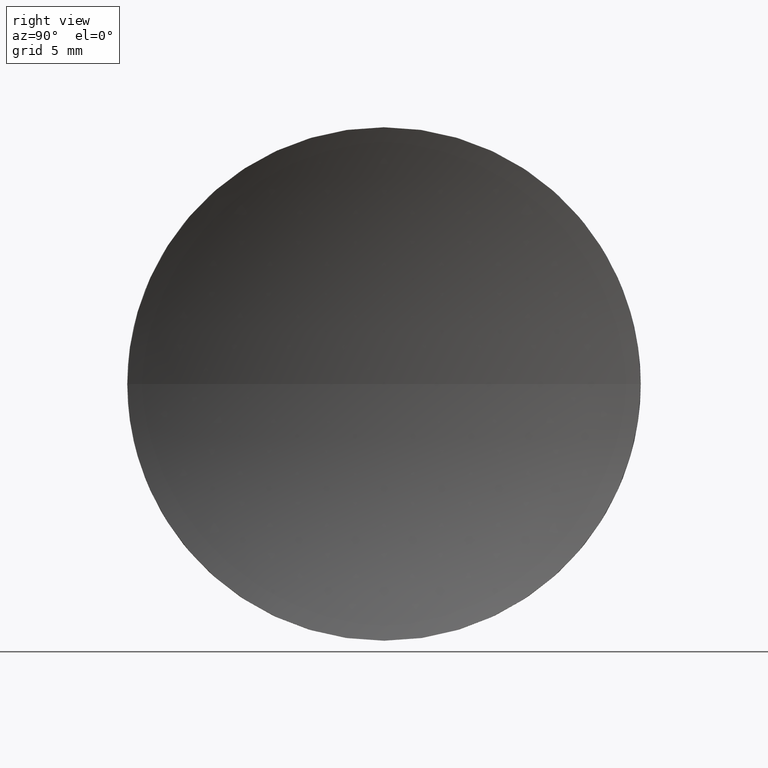
[diagram: clean part render]
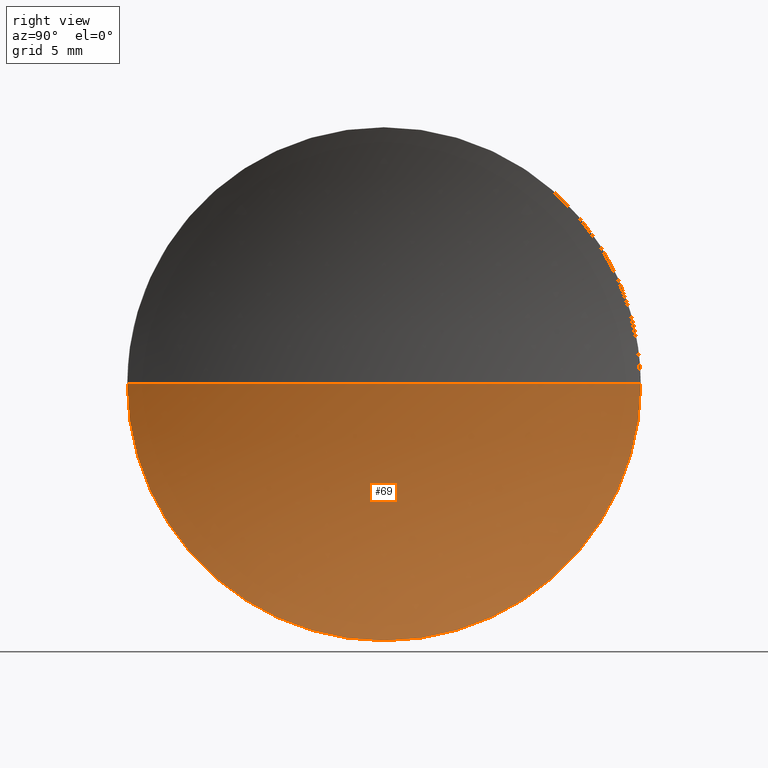
[diagram: same view with one face highlighted and labeled with its STEP entity id]
A machine part, right view. The second image highlights one B-rep face of the part: STEP entity #69.
In plain terms, the highlighted spherical surface has radius 35.6 mm.
Its self-contained STEP definition (entity closure, byte-faithful):
#2 = CIRCLE ( 'NONE', #157, 35.60000000000000900 ) ;
#8 = DIRECTION ( 'NONE',  ( 0.0000000000000000000, -1.224646799147353200E-016, 1.000000000000000000 ) ) ;
#17 = DIRECTION ( 'NONE',  ( 0.0000000000000000000, 0.0000000000000000000, -1.000000000000000000 ) ) ;
#19 = EDGE_CURVE ( 'NONE', #136, #27, #58, .T. ) ;
#25 = DIRECTION ( 'NONE',  ( 0.0000000000000000000, -1.000000000000000000, 0.0000000000000000000 ) ) ;
#27 = VERTEX_POINT ( 'NONE', #149 ) ;
#31 = FACE_OUTER_BOUND ( 'NONE', #175, .T. ) ;
#33 = ORIENTED_EDGE ( 'NONE', *, *, #130, .T. ) ;
#48 = CARTESIAN_POINT ( 'NONE',  ( 157.1068341785477000, 71.19398908659371700, 0.0000000000000000000 ) ) ;
#50 = DIRECTION ( 'NONE',  ( 0.0000000000000000000, 0.0000000000000000000, 1.000000000000000000 ) ) ;
#56 = CARTESIAN_POINT ( 'NONE',  ( 157.1068341785477000, 71.19398908659371700, 0.0000000000000000000 ) ) ;
#58 = CIRCLE ( 'NONE', #156, 12.70000000000000300 ) ;
#69 = ADVANCED_FACE ( 'NONE', ( #31 ), #126, .F. ) ;
#71 = CARTESIAN_POINT ( 'NONE',  ( 121.5068341785476900, 71.19398908659371700, 0.0000000000000000000 ) ) ;
#73 = CARTESIAN_POINT ( 'NONE',  ( 123.8492034752038400, 71.19398908659370300, 0.0000000000000000000 ) ) ;
#78 = ORIENTED_EDGE ( 'NONE', *, *, #141, .F. ) ;
#79 = AXIS2_PLACEMENT_3D ( 'NONE', #56, #17, #111 ) ;
#85 = CARTESIAN_POINT ( 'NONE',  ( 123.8492034752038400, 83.89398908659370600, 1.555301434917137400E-015 ) ) ;
#90 = CARTESIAN_POINT ( 'NONE',  ( 157.1068341785477000, 71.19398908659371700, 0.0000000000000000000 ) ) ;
#99 = ORIENTED_EDGE ( 'NONE', *, *, #184, .F. ) ;
#101 = CARTESIAN_POINT ( 'NONE',  ( 123.8492034752038400, 71.19398908659370300, 0.0000000000000000000 ) ) ;
#102 = DIRECTION ( 'NONE',  ( 0.0000000000000000000, -1.000000000000000000, -1.224646799147353200E-016 ) ) ;
#111 = DIRECTION ( 'NONE',  ( -1.000000000000000000, 0.0000000000000000000, 0.0000000000000000000 ) ) ;
#114 = AXIS2_PLACEMENT_3D ( 'NONE', #90, #167, #25 ) ;
#119 = VERTEX_POINT ( 'NONE', #151 ) ;
#123 = CIRCLE ( 'NONE', #139, 12.70000000000000300 ) ;
#126 = SPHERICAL_SURFACE ( 'NONE', #114, 35.60000000000000900 ) ;
#130 = EDGE_CURVE ( 'NONE', #136, #182, #2, .T. ) ;
#135 = DIRECTION ( 'NONE',  ( -1.000000000000000000, -0.0000000000000000000, -0.0000000000000000000 ) ) ;
#136 = VERTEX_POINT ( 'NONE', #85 ) ;
#139 = AXIS2_PLACEMENT_3D ( 'NONE', #73, #161, #147 ) ;
#141 = EDGE_CURVE ( 'NONE', #27, #119, #123, .T. ) ;
#147 = DIRECTION ( 'NONE',  ( 0.0000000000000000000, 0.0000000000000000000, 1.000000000000000000 ) ) ;
#149 = CARTESIAN_POINT ( 'NONE',  ( 123.8492034752038400, 71.19398908659370300, -12.70000000000000300 ) ) ;
#151 = CARTESIAN_POINT ( 'NONE',  ( 123.8492034752038400, 58.49398908659371400, 0.0000000000000000000 ) ) ;
#155 = ORIENTED_EDGE ( 'NONE', *, *, #19, .F. ) ;
#156 = AXIS2_PLACEMENT_3D ( 'NONE', #101, #135, #50 ) ;
#157 = AXIS2_PLACEMENT_3D ( 'NONE', #48, #8, #102 ) ;
#161 = DIRECTION ( 'NONE',  ( -1.000000000000000000, -0.0000000000000000000, -0.0000000000000000000 ) ) ;
#166 = CIRCLE ( 'NONE', #79, 35.60000000000000900 ) ;
#167 = DIRECTION ( 'NONE',  ( 0.0000000000000000000, 0.0000000000000000000, 1.000000000000000000 ) ) ;
#175 = EDGE_LOOP ( 'NONE', ( #155, #33, #99, #78 ) ) ;
#182 = VERTEX_POINT ( 'NONE', #71 ) ;
#184 = EDGE_CURVE ( 'NONE', #119, #182, #166, .T. ) ;